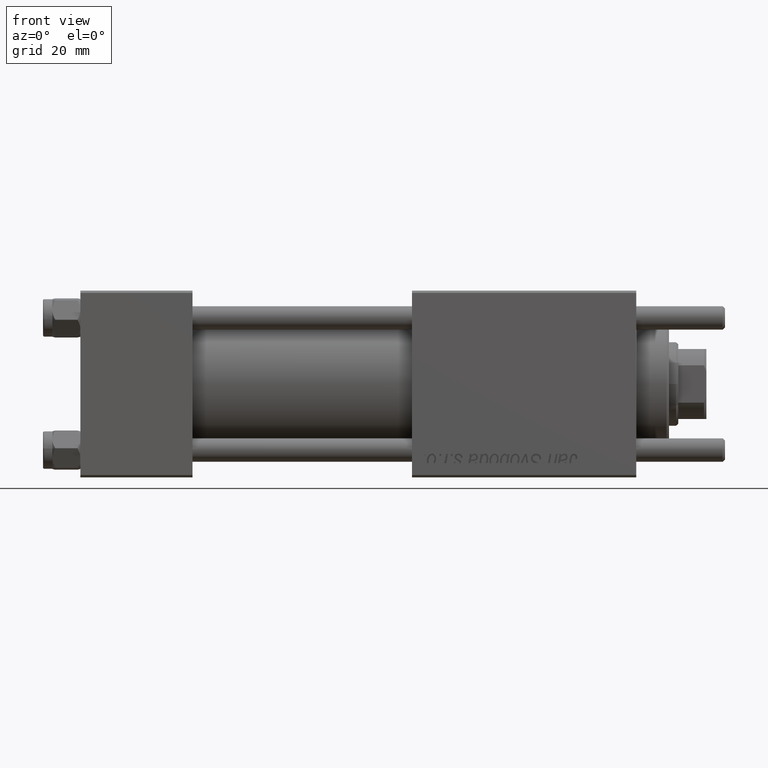
[diagram: clean part render]
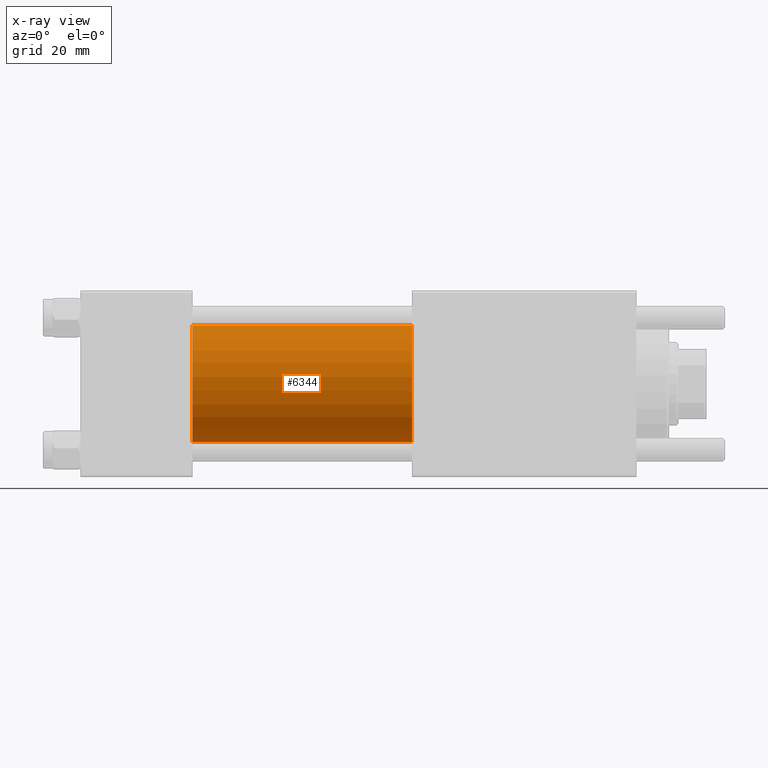
[diagram: x-ray — body ghosted, one internal face saturated and labeled with its STEP entity id]
A machine part, front view, then the same camera in x-ray: the body is ghosted and one INTERNAL B-rep face — a face not visible from any outside direction — is saturated and labeled: STEP entity #6344.
In plain terms, the highlighted cylindrical surface (partial cylindrical patch) has radius 12.5 mm, axis along (-1, -0, -0).
Its self-contained STEP definition (entity closure, byte-faithful):
#1016 = EDGE_CURVE ( 'NONE', #39740, #48320, #16864, .T. ) ;
#1612 = DIRECTION ( 'NONE',  ( 1.000000000000000000, 0.000000000000000000, 0.000000000000000000 ) ) ;
#1824 = CARTESIAN_POINT ( 'NONE',  ( 71.00000000000001421, -1.071276715031019515E-15, -12.49999999999999645 ) ) ;
#2655 = VECTOR ( 'NONE', #11509, 1000.000000000000000 ) ;
#2900 = CARTESIAN_POINT ( 'NONE',  ( 71.00000000000001421, -2.602085213965210642E-15, 12.49999999999999645 ) ) ;
#6083 = AXIS2_PLACEMENT_3D ( 'NONE', #23972, #45466, #32023 ) ;
#6344 = ADVANCED_FACE ( 'NONE', ( #15097 ), #14531, .F. ) ;
#10310 = EDGE_CURVE ( 'NONE', #48320, #55902, #37652, .T. ) ;
#11509 = DIRECTION ( 'NONE',  ( -1.000000000000000000, -0.000000000000000000, -0.000000000000000000 ) ) ;
#13302 = ORIENTED_EDGE ( 'NONE', *, *, #10310, .T. ) ;
#14531 = CYLINDRICAL_SURFACE ( 'NONE', #6083, 12.49999999999999645 ) ;
#15097 = FACE_OUTER_BOUND ( 'NONE', #28030, .T. ) ;
#15965 = EDGE_CURVE ( 'NONE', #39740, #39779, #20668, .T. ) ;
#16263 = VECTOR ( 'NONE', #37377, 1000.000000000000000 ) ;
#16693 = ORIENTED_EDGE ( 'NONE', *, *, #1016, .T. ) ;
#16864 = CIRCLE ( 'NONE', #24199, 12.49999999999999645 ) ;
#17272 = EDGE_CURVE ( 'NONE', #39779, #55902, #18253, .T. ) ;
#18253 = CIRCLE ( 'NONE', #49385, 12.49999999999999645 ) ;
#19429 = DIRECTION ( 'NONE',  ( 0.000000000000000000, 0.000000000000000000, -1.000000000000000000 ) ) ;
#20668 = LINE ( 'NONE', #2900, #2655 ) ;
#22551 = DIRECTION ( 'NONE',  ( 0.000000000000000000, 0.000000000000000000, -1.000000000000000000 ) ) ;
#23725 = DIRECTION ( 'NONE',  ( 1.000000000000000000, 0.000000000000000000, 0.000000000000000000 ) ) ;
#23972 = CARTESIAN_POINT ( 'NONE',  ( 71.00000000000001421, -2.602085213965210642E-15, 0.000000000000000000 ) ) ;
#24199 = AXIS2_PLACEMENT_3D ( 'NONE', #44022, #1612, #22551 ) ;
#28030 = EDGE_LOOP ( 'NONE', ( #16693, #13302, #44000, #55507 ) ) ;
#28365 = CARTESIAN_POINT ( 'NONE',  ( 24.00000000000000000, -1.071276715031019515E-15, -12.49999999999999645 ) ) ;
#32023 = DIRECTION ( 'NONE',  ( 0.000000000000000000, 0.000000000000000000, 1.000000000000000000 ) ) ;
#32072 = CARTESIAN_POINT ( 'NONE',  ( 71.00000000000001421, -1.071276715031019515E-15, -12.49999999999999645 ) ) ;
#37377 = DIRECTION ( 'NONE',  ( -1.000000000000000000, -0.000000000000000000, -0.000000000000000000 ) ) ;
#37652 = LINE ( 'NONE', #1824, #16263 ) ;
#39740 = VERTEX_POINT ( 'NONE', #53759 ) ;
#39779 = VERTEX_POINT ( 'NONE', #45712 ) ;
#44000 = ORIENTED_EDGE ( 'NONE', *, *, #17272, .F. ) ;
#44022 = CARTESIAN_POINT ( 'NONE',  ( 71.00000000000001421, -2.602085213965210642E-15, 0.000000000000000000 ) ) ;
#44360 = CARTESIAN_POINT ( 'NONE',  ( 24.00000000000000000, -2.602085213965210642E-15, 0.000000000000000000 ) ) ;
#45466 = DIRECTION ( 'NONE',  ( -1.000000000000000000, -0.000000000000000000, -0.000000000000000000 ) ) ;
#45712 = CARTESIAN_POINT ( 'NONE',  ( 24.00000000000000000, -2.602085213965210642E-15, 12.49999999999999645 ) ) ;
#48320 = VERTEX_POINT ( 'NONE', #32072 ) ;
#49385 = AXIS2_PLACEMENT_3D ( 'NONE', #44360, #23725, #19429 ) ;
#53759 = CARTESIAN_POINT ( 'NONE',  ( 71.00000000000001421, -2.602085213965210642E-15, 12.49999999999999645 ) ) ;
#55507 = ORIENTED_EDGE ( 'NONE', *, *, #15965, .F. ) ;
#55902 = VERTEX_POINT ( 'NONE', #28365 ) ;